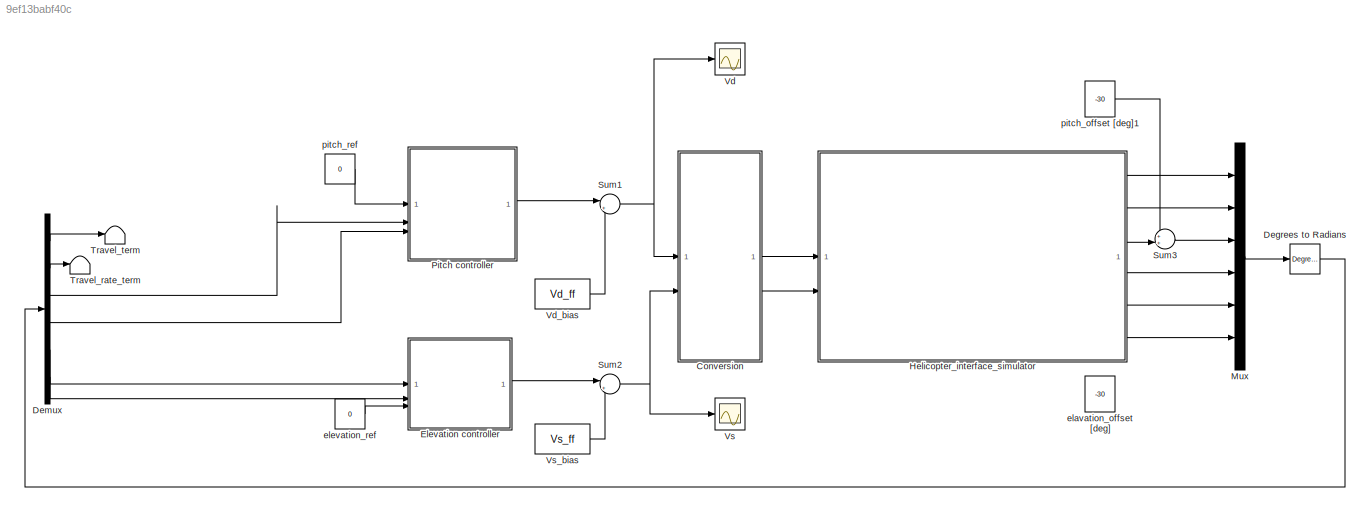
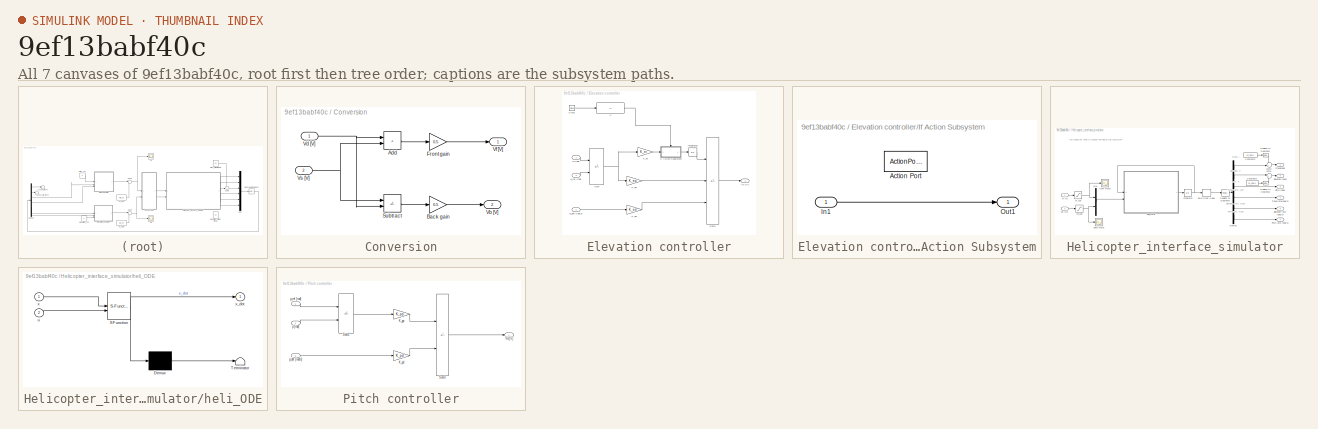
[diagram: thumbnail index - all 7 canvases of the model, root first then tree order]
MODEL slx_9ef13babf40c
KIND model
CONFIG AbsTol = auto
CONFIG EnableMultiTasking = off
CONFIG FixedStep = auto
CONFIG MaxStep = 0.002
CONFIG MinStep = auto
CONFIG RelTol = 1e-3
CONFIG SampleTimeConstraint = Unconstrained
CONFIG SolverName = ode23s
CONFIG StartTime = 0.0
CONFIG StopTime = 60
BLOCK [SubSystem] Conversion
BLOCK [Sum] Conversion/Add
  IconShape = rectangular
BLOCK [Gain] Conversion/Back gain
  Gain = 0.5
BLOCK [Gain] Conversion/Front gain
  Gain = 0.5
BLOCK [Sum] Conversion/Subtract
  IconShape = rectangular
  Inputs = +-
BLOCK [Outport] Conversion/Vb [V]
  Port = 2
BLOCK [Inport] Conversion/Vd [V]
BLOCK [Outport] Conversion/Vf [V]
BLOCK [Inport] Conversion/Vs [V]
  Port = 2
BLOCK [Reference] Degrees to Radians  REF=simulink_extras/Transformations/Degrees to
Radians
  SourceBlock = simulink_extras/Transformations/Degrees to\nRadians
  SourceType = DegreesToRadians
BLOCK [Demux] Demux
  Outputs = 6
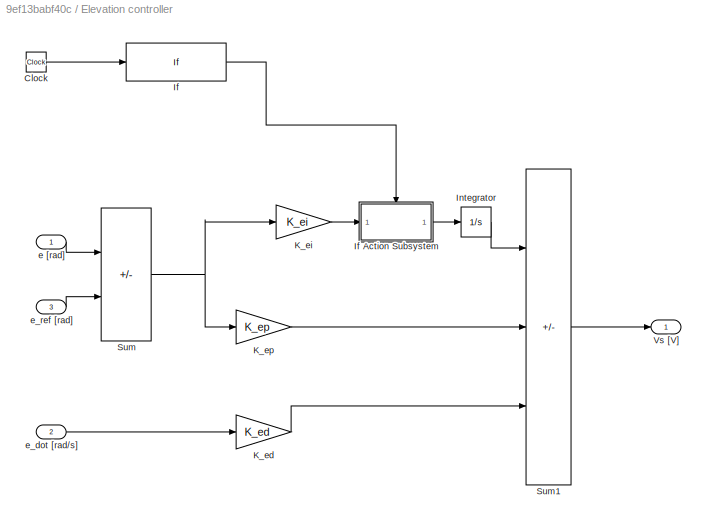
BLOCK [SubSystem] Elevation controller
BLOCK [Clock] Elevation controller/Clock
BLOCK [If] Elevation controller/If
  IfExpression = u1 >=2
  ShowElse = off
BLOCK [SubSystem] Elevation controller/If Action Subsystem
  TreatAsAtomicUnit = on
BLOCK [ActionPort] Elevation controller/If Action Subsystem/Action Port
  ActionPortLabel = if(u1 >=5)
BLOCK [Inport] Elevation controller/If Action Subsystem/In1
BLOCK [Outport] Elevation controller/If Action Subsystem/Out1
BLOCK [Integrator] Elevation controller/Integrator
  LimitOutput = on
BLOCK [Gain] Elevation controller/K_ed
  Gain = K_ed
  OutDataTypeStr = Inherit: Same as input
  ParamDataTypeStr = Inherit: Same as input
  SaturateOnIntegerOverflow = on
BLOCK [Gain] Elevation controller/K_ei
  Gain = K_ei
  OutDataTypeStr = Inherit: Same as input
  ParamDataTypeStr = Inherit: Same as input
  SaturateOnIntegerOverflow = on
BLOCK [Gain] Elevation controller/K_ep
  Gain = K_ep
  OutDataTypeStr = Inherit: Same as input
  ParamDataTypeStr = Inherit: Same as input
  SaturateOnIntegerOverflow = on
BLOCK [Sum] Elevation controller/Sum
  IconShape = rectangular
  InputSameDT = on
  Inputs = -+
  OutDataTypeStr = Inherit: Same as first input
  SaturateOnIntegerOverflow = on
BLOCK [Sum] Elevation controller/Sum1
  IconShape = rectangular
  InputSameDT = on
  Inputs = ++-
  OutDataTypeStr = Inherit: Same as first input
  SaturateOnIntegerOverflow = on
BLOCK [Outport] Elevation controller/Vs [V]
  InitialOutput = 0
BLOCK [Inport] Elevation controller/e [rad]
BLOCK [Inport] Elevation controller/e_dot [rad//s]
  Port = 2
BLOCK [Inport] Elevation controller/e_ref [rad]
  Port = 3
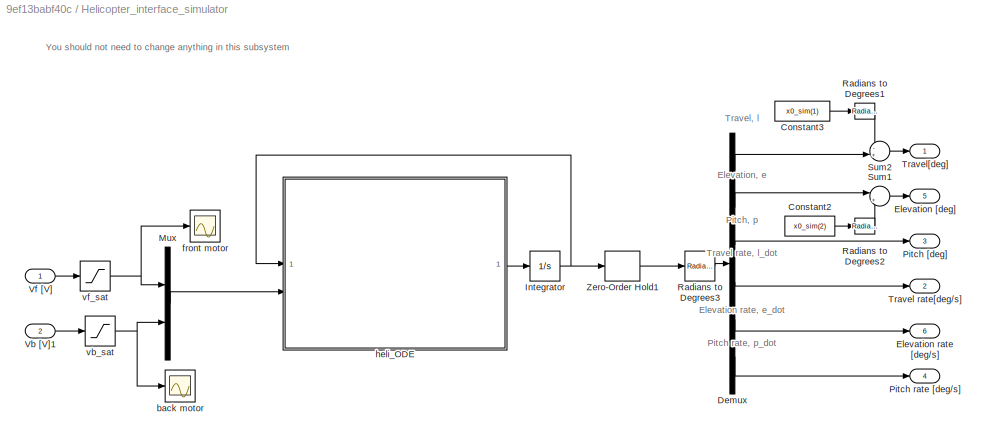
BLOCK [SubSystem] Helicopter_interface_simulator
BLOCK [Constant] Helicopter_interface_simulator/Constant2
  Value = x0_sim(2)
BLOCK [Constant] Helicopter_interface_simulator/Constant3
  Value = x0_sim(1)
BLOCK [Demux] Helicopter_interface_simulator/Demux
  Outputs = 6
BLOCK [Outport] Helicopter_interface_simulator/Elevation [deg]
  Port = 5
BLOCK [Outport] Helicopter_interface_simulator/Elevation rate [deg//s]
  Port = 6
BLOCK [Integrator] Helicopter_interface_simulator/Integrator
  InitialCondition = x0_sim
BLOCK [Mux] Helicopter_interface_simulator/Mux
  DisplayOption = bar
  Inputs = 2
BLOCK [Outport] Helicopter_interface_simulator/Pitch [deg]
  Port = 3
BLOCK [Outport] Helicopter_interface_simulator/Pitch rate [deg//s]
  Port = 4
BLOCK [Reference] Helicopter_interface_simulator/Radians to Degrees1  REF=simulink_extras/Transformations/Radians
to Degrees
  SourceBlock = simulink_extras/Transformations/Radians\nto Degrees
  SourceType = RadiansToDegrees
BLOCK [Reference] Helicopter_interface_simulator/Radians to Degrees2  REF=simulink_extras/Transformations/Radians
to Degrees
  SourceBlock = simulink_extras/Transformations/Radians\nto Degrees
  SourceType = RadiansToDegrees
BLOCK [Reference] Helicopter_interface_simulator/Radians to Degrees3  REF=simulink_extras/Transformations/Radians
to Degrees
  SourceBlock = simulink_extras/Transformations/Radians\nto Degrees
  SourceType = RadiansToDegrees
BLOCK [Sum] Helicopter_interface_simulator/Sum1
  Inputs = |+-
BLOCK [Sum] Helicopter_interface_simulator/Sum2
  Inputs = -+|
BLOCK [Outport] Helicopter_interface_simulator/Travel rate[deg//s]
  Port = 2
BLOCK [Outport] Helicopter_interface_simulator/Travel[deg]
BLOCK [Inport] Helicopter_interface_simulator/Vb [V]1
  Port = 2
BLOCK [Inport] Helicopter_interface_simulator/Vf [V]
BLOCK [ZeroOrderHold] Helicopter_interface_simulator/Zero-Order Hold1
  SampleTime = 0.058
BLOCK [Scope] Helicopter_interface_simulator/back motor
  ActiveDisplayYMaximum = 0.784803
  ActiveDisplayYMinimum = 0.78479
  DataLoggingDecimateData = on
  DataLoggingDecimation = 1
  DataLoggingSaveFormat = Structure With Time
  DataLoggingVariableName = ScopeData4
  Floating = off
  GraphicalSettings = {"GraphicalSettings":{"LegacySettings":true,"Style":{"AxesScalingProperties":{"ScaleAxesLimitsAtStop":false},"Style":{"AxesColor":"[0 0 0]","BackgroundColor":"[0.156862745098039 0.156862745098039 0.156862745098039]","ChannelNames":[""],"ColorOrder":"[1 1 0.0666666666666667;0.0745098039215686 0.623529411764706 1;1 0.411764705882353 0.16078431372549;0.392156862745098 0.831372549019608 0.074509803921...<+632ch>
  MultipleDisplayCache = [{"MaxYLimMag":0.784803,"MaxYLimReal":0.784803,"MinYLimMag":0.78479,"MinYLimReal":0.78479,"PlotAsMagnitudePhase":false,"ShowGrid":true,"ShowLegend":false,"Title":"%<SignalLabel>","YLabel":""}]
  NumInputPorts = 1
  WasSavedAsWebScope = on
  WindowPosition = [212 170 1374 405]
BLOCK [Scope] Helicopter_interface_simulator/front motor
  ActiveDisplayYMaximum = 5.49145
  ActiveDisplayYMinimum = 3.08761
  DataLoggingDecimateData = on
  DataLoggingDecimation = 1
  DataLoggingSaveFormat = Structure With Time
  DataLoggingVariableName = ScopeData3
  Floating = off
  GraphicalSettings = {"GraphicalSettings":{"LegacySettings":true,"Style":{"AxesScalingProperties":{"ScaleAxesLimitsAtStop":false},"Style":{"AxesColor":"[0 0 0]","BackgroundColor":"[0.156862745098039 0.156862745098039 0.156862745098039]","ChannelNames":[""],"ColorOrder":"[1 1 0.0666666666666667;0.0745098039215686 0.623529411764706 1;1 0.411764705882353 0.16078431372549;0.392156862745098 0.831372549019608 0.074509803921...<+657ch>
  MultipleDisplayCache = [{"MaxYLimMag":5.49145,"MaxYLimReal":5.49145,"MinYLimMag":3.08761,"MinYLimReal":3.08761,"PlotAsMagnitudePhase":false,"ShowGrid":true,"ShowLegend":false,"Title":"%<SignalLabel>","YLabel":""}]
  NumInputPorts = 1
  WasSavedAsWebScope = on
  WindowPosition = [212 170 1374 405]
BLOCK [SubSystem] Helicopter_interface_simulator/heli_ODE
  ErrorFcn = Stateflow.Translate.translate
  PermitHierarchicalResolution = ExplicitOnly
  SFBlockType = MATLAB Function
  TreatAsAtomicUnit = on
BLOCK [Demux] Helicopter_interface_simulator/heli_ODE/ Demux 
  Outputs = 1
BLOCK [S-Function] Helicopter_interface_simulator/heli_ODE/ SFunction 
  EnableBusSupport = off
  FunctionName = sf_sfun
  PortCounts = [2 2]
  SFcnIsStateOwnerBlock = off
  SFunctionDeploymentMode = off
  Tag = Stateflow S-Function 3
BLOCK [Terminator] Helicopter_interface_simulator/heli_ODE/ Terminator 
BLOCK [Inport] Helicopter_interface_simulator/heli_ODE/u
  Port = 2
BLOCK [Inport] Helicopter_interface_simulator/heli_ODE/x
BLOCK [Outport] Helicopter_interface_simulator/heli_ODE/x_dot
BLOCK [Saturate] Helicopter_interface_simulator/vb_sat
  LowerLimit = -5
  UpperLimit = 5
BLOCK [Saturate] Helicopter_interface_simulator/vf_sat
  LowerLimit = -5
  UpperLimit = 5
BLOCK [Mux] Mux
  DisplayOption = bar
  Inputs = 6
BLOCK [SubSystem] Pitch controller
BLOCK [Gain] Pitch controller/K_pd
  Gain = K_pd
  OutDataTypeStr = Inherit: Same as input
  ParamDataTypeStr = Inherit: Same as input
  SaturateOnIntegerOverflow = on
BLOCK [Gain] Pitch controller/K_pp
  Gain = K_pp
  OutDataTypeStr = Inherit: Same as input
  ParamDataTypeStr = Inherit: Same as input
  SaturateOnIntegerOverflow = on
BLOCK [Sum] Pitch controller/Sum2
  IconShape = rectangular
  InputSameDT = on
  Inputs = +-
  OutDataTypeStr = Inherit: Same as first input
  SaturateOnIntegerOverflow = on
BLOCK [Sum] Pitch controller/Sum3
  IconShape = rectangular
  InputSameDT = on
  Inputs = +-
  OutDataTypeStr = Inherit: Same as first input
  SaturateOnIntegerOverflow = on
BLOCK [Outport] Pitch controller/Vd [V]
  InitialOutput = 0
BLOCK [Inport] Pitch controller/p [rad]
  Port = 2
BLOCK [Inport] Pitch controller/p_dot [rad//s]
  Port = 3
BLOCK [Inport] Pitch controller/p_ref [rad]
BLOCK [Sum] Sum1
  Inputs = |++
BLOCK [Sum] Sum2
  Inputs = |++
BLOCK [Sum] Sum3
  Inputs = ++|
BLOCK [Terminator] Travel_rate_term
BLOCK [Terminator] Travel_term
BLOCK [Scope] Vd
  ActiveDisplayYMaximum = 6E-16
  ActiveDisplayYMinimum = -6E-16
  DataLoggingDecimateData = on
  DataLoggingDecimation = 1
  DataLoggingSaveFormat = Structure With Time
  DataLoggingVariableName = ScopeData1
  Floating = off
  GraphicalSettings = {"GraphicalSettings":{"LegacySettings":true,"Style":{"AxesScalingProperties":{"ScaleAxesLimitsAtStop":false},"Style":{"AxesColor":"[0 0 0]","BackgroundColor":"[0.156862745098039 0.156862745098039 0.156862745098039]","ChannelNames":[""],"ColorOrder":"[1 1 0.0666666666666667;0.0745098039215686 0.623529411764706 1;1 0.411764705882353 0.16078431372549;0.392156862745098 0.831372549019608 0.074509803921...<+632ch>
  MultipleDisplayCache = [{"MaxYLimMag":6E-16,"MaxYLimReal":6E-16,"MinYLimMag":0,"MinYLimReal":-6E-16,"PlotAsMagnitudePhase":false,"ShowGrid":true,"ShowLegend":false,"Title":"%<SignalLabel>","YLabel":""}]
  NumInputPorts = 1
  ScopeFrameLocation = window
  WasSavedAsWebScope = on
  WindowPosition = [-157.000000,85.000000,1282.000000,405.000000,]
BLOCK [Constant] Vd_bias
  Value = Vd_ff
BLOCK [Scope] Vs
  ActiveDisplayYMaximum = 8.74176
  ActiveDisplayYMinimum = 5.91361
  DataLoggingDecimateData = on
  DataLoggingDecimation = 1
  DataLoggingSaveFormat = Structure With Time
  DataLoggingVariableName = ScopeData3
  Floating = off
  GraphicalSettings = {"GraphicalSettings":{"LegacySettings":true,"Style":{"AxesScalingProperties":{"ScaleAxesLimitsAtStop":false},"Style":{"AxesColor":"[0 0 0]","BackgroundColor":"[0.156862745098039 0.156862745098039 0.156862745098039]","ChannelNames":[""],"ColorOrder":"[1 1 0.0666666666666667;0.0745098039215686 0.623529411764706 1;1 0.411764705882353 0.16078431372549;0.392156862745098 0.831372549019608 0.074509803921...<+684ch>
  MultipleDisplayCache = [{"MaxYLimMag":8.74176,"MaxYLimReal":8.74176,"MinYLimMag":5.91361,"MinYLimReal":5.91361,"PlotAsMagnitudePhase":false,"ShowGrid":true,"ShowLegend":false,"Title":"%<SignalLabel>","YLabel":""}]
  NumInputPorts = 1
  ScopeFrameLocation = window
  WasSavedAsWebScope = on
  WindowPosition = [2.000000,-358.000000,958.000000,780.000000,]
BLOCK [Constant] Vs_bias
  Value = Vs_ff
BLOCK [Constant] elavation_offset [deg]
  Value = -30
BLOCK [Constant] elevation_ref
  Value = 0
BLOCK [Constant] pitch_offset [deg]1
  Value = -30
BLOCK [Constant] pitch_ref
  Value = 0
ANNOTATION Helicopter_interface_simulator: You should not need to change anything in this subsystem
ANNOTATION Helicopter_interface_simulator: Elevation rate, e_dot
ANNOTATION Helicopter_interface_simulator: Elevation, e
ANNOTATION Helicopter_interface_simulator: Pitch rate, p_dot
ANNOTATION Helicopter_interface_simulator: Pitch, p
ANNOTATION Helicopter_interface_simulator: Travel rate, l_dot
ANNOTATION Helicopter_interface_simulator: Travel, l
LINE Conversion/Add:1 -> Conversion/Front gain:1
LINE Conversion/Back gain:1 -> Conversion/Vb [V]:1
LINE Conversion/Front gain:1 -> Conversion/Vf [V]:1
LINE Conversion/Subtract:1 -> Conversion/Back gain:1
NET Conversion/Vd [V]:1 -> Conversion/Add:1, Conversion/Subtract:2
NET Conversion/Vs [V]:1 -> Conversion/Add:2, Conversion/Subtract:1
LINE Conversion:1 -> Helicopter_interface_simulator:1
LINE Conversion:2 -> Helicopter_interface_simulator:2
LINE Degrees to Radians:1 -> Demux:1
LINE Demux:1 -> Travel_term:1
LINE Demux:2 -> Travel_rate_term:1
LINE Demux:3 -> Pitch controller:2
LINE Demux:4 -> Pitch controller:3
LINE Demux:5 -> Elevation controller:1
LINE Demux:6 -> Elevation controller:2
LINE Elevation controller/Clock:1 -> Elevation controller/If:1
LINE Elevation controller/If Action Subsystem/In1:1 -> Elevation controller/If Action Subsystem/Out1:1
LINE Elevation controller/If Action Subsystem:1 -> Elevation controller/Integrator:1
LINE Elevation controller/If:1 -> Elevation controller/If Action Subsystem:ifaction
LINE Elevation controller/Integrator:1 -> Elevation controller/Sum1:1
LINE Elevation controller/K_ed:1 -> Elevation controller/Sum1:3
LINE Elevation controller/K_ei:1 -> Elevation controller/If Action Subsystem:1
LINE Elevation controller/K_ep:1 -> Elevation controller/Sum1:2
LINE Elevation controller/Sum1:1 -> Elevation controller/Vs [V]:1
NET Elevation controller/Sum:1 -> Elevation controller/K_ei:1, Elevation controller/K_ep:1
LINE Elevation controller/e [rad]:1 -> Elevation controller/Sum:1
LINE Elevation controller/e_dot [rad//s]:1 -> Elevation controller/K_ed:1
LINE Elevation controller/e_ref [rad]:1 -> Elevation controller/Sum:2
LINE Elevation controller:1 -> Sum2:1
LINE Helicopter_interface_simulator/Constant2:1 -> Helicopter_interface_simulator/Radians to Degrees2:1
LINE Helicopter_interface_simulator/Constant3:1 -> Helicopter_interface_simulator/Radians to Degrees1:1
LINE Helicopter_interface_simulator/Demux:1 -> Helicopter_interface_simulator/Sum2:2
LINE Helicopter_interface_simulator/Demux:2 -> Helicopter_interface_simulator/Sum1:1
LINE Helicopter_interface_simulator/Demux:3 -> Helicopter_interface_simulator/Pitch [deg]:1
LINE Helicopter_interface_simulator/Demux:4 -> Helicopter_interface_simulator/Travel rate[deg//s]:1
LINE Helicopter_interface_simulator/Demux:5 -> Helicopter_interface_simulator/Elevation rate [deg//s]:1
LINE Helicopter_interface_simulator/Demux:6 -> Helicopter_interface_simulator/Pitch rate [deg//s]:1
NET Helicopter_interface_simulator/Integrator:1 -> Helicopter_interface_simulator/Zero-Order Hold1:1, Helicopter_interface_simulator/heli_ODE:1
LINE Helicopter_interface_simulator/Mux:1 -> Helicopter_interface_simulator/heli_ODE:2
LINE Helicopter_interface_simulator/Radians to Degrees1:1 -> Helicopter_interface_simulator/Sum2:1
LINE Helicopter_interface_simulator/Radians to Degrees2:1 -> Helicopter_interface_simulator/Sum1:2
LINE Helicopter_interface_simulator/Radians to Degrees3:1 -> Helicopter_interface_simulator/Demux:1
LINE Helicopter_interface_simulator/Sum1:1 -> Helicopter_interface_simulator/Elevation [deg]:1
LINE Helicopter_interface_simulator/Sum2:1 -> Helicopter_interface_simulator/Travel[deg]:1
LINE Helicopter_interface_simulator/Vb [V]1:1 -> Helicopter_interface_simulator/vb_sat:1
LINE Helicopter_interface_simulator/Vf [V]:1 -> Helicopter_interface_simulator/vf_sat:1
LINE Helicopter_interface_simulator/Zero-Order Hold1:1 -> Helicopter_interface_simulator/Radians to Degrees3:1
LINE Helicopter_interface_simulator/heli_ODE:1 -> Helicopter_interface_simulator/Integrator:1
NET Helicopter_interface_simulator/vb_sat:1 -> Helicopter_interface_simulator/Mux:2, Helicopter_interface_simulator/back motor:1
NET Helicopter_interface_simulator/vf_sat:1 -> Helicopter_interface_simulator/Mux:1, Helicopter_interface_simulator/front motor:1
LINE Helicopter_interface_simulator:1 -> Mux:1
LINE Helicopter_interface_simulator:2 -> Mux:2
LINE Helicopter_interface_simulator:3 -> Sum3:2
LINE Helicopter_interface_simulator:4 -> Mux:4
LINE Helicopter_interface_simulator:5 -> Mux:5
LINE Helicopter_interface_simulator:6 -> Mux:6
LINE Mux:1 -> Degrees to Radians:1
LINE Pitch controller/K_pd:1 -> Pitch controller/Sum3:2
LINE Pitch controller/K_pp:1 -> Pitch controller/Sum3:1
LINE Pitch controller/Sum2:1 -> Pitch controller/K_pp:1
LINE Pitch controller/Sum3:1 -> Pitch controller/Vd [V]:1
LINE Pitch controller/p [rad]:1 -> Pitch controller/Sum2:2
LINE Pitch controller/p_dot [rad//s]:1 -> Pitch controller/K_pd:1
LINE Pitch controller/p_ref [rad]:1 -> Pitch controller/Sum2:1
LINE Pitch controller:1 -> Sum1:1
NET Sum1:1 -> Conversion:1, Vd:1
NET Sum2:1 -> Conversion:2, Vs:1
LINE Sum3:1 -> Mux:3
LINE Vd_bias:1 -> Sum1:2
LINE Vs_bias:1 -> Sum2:2
LINE elevation_ref:1 -> Elevation controller:3
LINE pitch_offset [deg]1:1 -> Sum3:1
LINE pitch_ref:1 -> Pitch controller:1
note: NET lines group one-source signal fan-out (src -> all destinations, sorted); 1:1 wires keep LINE
CHART Helicopter_interface_simulator/heli_ODE states=1 transitions=1
  STATE_LABEL 'eML_blk_kernel()'
  STATE_LABEL "SCRIPT:\nfunction x_dot = helicopter_ODE(x, u)\n% x = [l, e, p, l_dot, e_dot, p_dot]\n% u = [V_f, V_b]\ncoder.extrinsic('xdot_c'); \nx_dot = zeros(6,1);\nx_dot = xdot_c('xdot_fun', x, u);\n\n"
CHART  states=0 transitions=0
